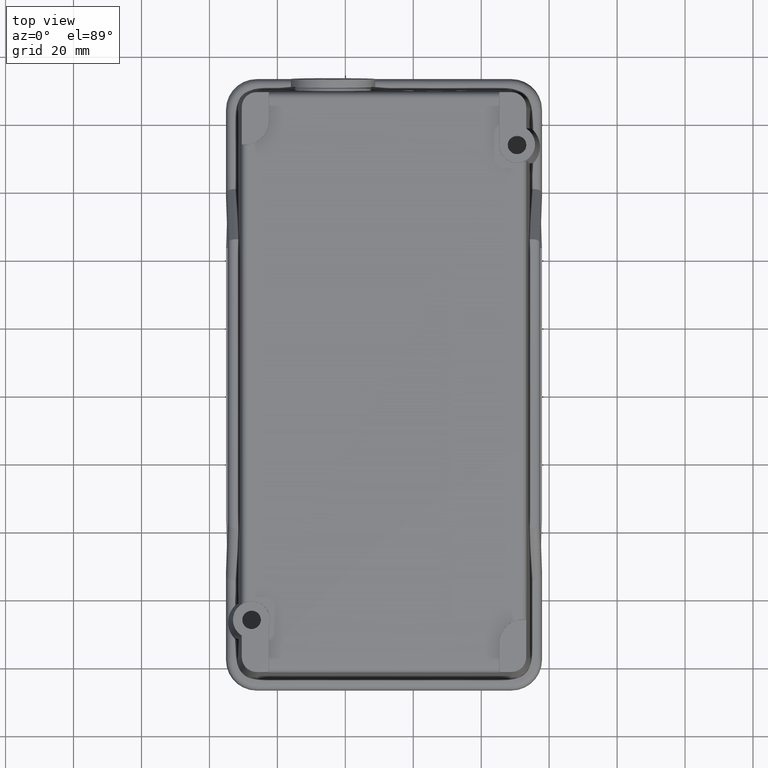
[diagram: clean part render]
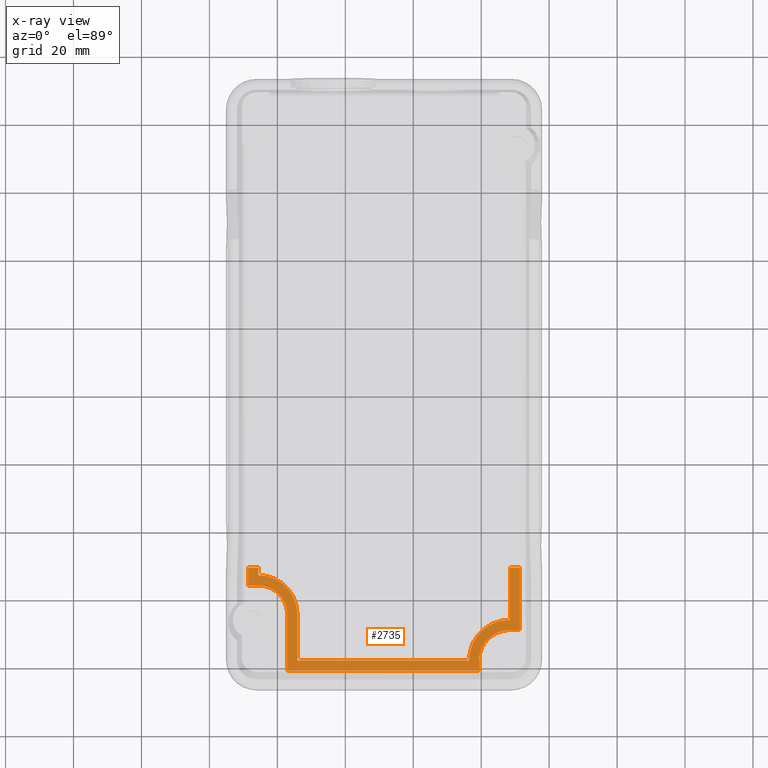
[diagram: x-ray — body ghosted, one internal face saturated and labeled with its STEP entity id]
A machine part, top view, then the same camera in x-ray: the body is ghosted and one INTERNAL B-rep face — a face not visible from any outside direction — is saturated and labeled: STEP entity #2735.
In plain terms, the highlighted planar face has unit normal (0, 0, -1).
Its self-contained STEP definition (entity closure, byte-faithful):
#2308=CARTESIAN_POINT('',(71.385091562882153,9.326639996555743,-3.000000000000060));
#2309=VERTEX_POINT('',#2308);
#2316=CARTESIAN_POINT('',(68.385091562882138,9.326639996555745,-3.000000000000062));
#2317=VERTEX_POINT('',#2316);
#2318=CARTESIAN_POINT('',(71.385091562882153,9.326639996555743,-3.000000000000060));
#2319=DIRECTION('',(-1.0,0.0,0.0));
#2320=VECTOR('',#2319,3.000000000000014);
#2321=LINE('',#2318,#2320);
#2322=EDGE_CURVE('',#2309,#2317,#2321,.T.);
#2371=CARTESIAN_POINT('',(71.385091562882153,-9.060219213902110,-3.000000000000056));
#2372=VERTEX_POINT('',#2371);
#2387=CARTESIAN_POINT('',(68.385081794713102,-9.060209445701265,-3.000000000000056));
#2388=VERTEX_POINT('',#2387);
#2395=CARTESIAN_POINT('',(68.385081794713102,-9.060209445701265,-3.000000000000056));
#2396=DIRECTION('',(0.999999999994699,-0.000003256056347,0.0));
#2397=VECTOR('',#2396,3.000009768184953);
#2398=LINE('',#2395,#2397);
#2399=EDGE_CURVE('',#2388,#2372,#2398,.T.);
#2411=CARTESIAN_POINT('',(59.377445663024666,-21.029586873288455,-3.000000000000056));
#2412=VERTEX_POINT('',#2411);
#2419=CARTESIAN_POINT('',(59.385081794689221,-18.037242516379955,-3.000000000000056));
#2420=VERTEX_POINT('',#2419);
#2421=CARTESIAN_POINT('',(59.385081794689221,-18.037242516379955,-3.000000000000056));
#2422=DIRECTION('',(-0.002551881030427,-0.999996743946302,0.0));
#2423=VECTOR('',#2422,2.992354100174133);
#2424=LINE('',#2421,#2423);
#2425=EDGE_CURVE('',#2420,#2412,#2424,.T.);
#2451=CARTESIAN_POINT('',(68.385091562882337,-6.060209445717158,-3.000000000000057));
#2452=VERTEX_POINT('',#2451);
#2459=CARTESIAN_POINT('',(56.385091562850462,-18.029586873288444,-3.000000000000057));
#2460=VERTEX_POINT('',#2459);
#2461=CARTESIAN_POINT('',(68.385052490206036,-18.060209445653655,-3.000000000000057));
#2462=DIRECTION('',(0.0,0.0,-1.0));
#2463=DIRECTION('',(-0.999996743946302,0.002551881030426,0.0));
#2464=AXIS2_PLACEMENT_3D('',#2461,#2462,#2463);
#2465=CIRCLE('',#2464,12.000000000000108);
#2466=EDGE_CURVE('',#2460,#2452,#2465,.T.);
#2500=CARTESIAN_POINT('',(68.385052490206036,-18.060209445653655,-3.000000000000056));
#2501=DIRECTION('',(0.0,0.0,-1.0));
#2502=DIRECTION('',(-0.999996743946302,0.002551881030426,0.0));
#2503=AXIS2_PLACEMENT_3D('',#2500,#2501,#2502);
#2504=CIRCLE('',#2503,9.000000000000098);
#2505=EDGE_CURVE('',#2420,#2388,#2504,.T.);
#2516=CARTESIAN_POINT('',(5.885091562884552,-18.029586873288597,-3.000000000000057));
#2517=VERTEX_POINT('',#2516);
#2518=CARTESIAN_POINT('',(5.885091562884552,-18.029586873288597,-3.000000000000057));
#2519=DIRECTION('',(1.0,0.0,0.0));
#2520=VECTOR('',#2519,50.499999999965908);
#2521=LINE('',#2518,#2520);
#2522=EDGE_CURVE('',#2517,#2460,#2521,.T.);
#2554=CARTESIAN_POINT('',(2.885091562884619,-21.029586873288444,-3.000000000000056));
#2555=VERTEX_POINT('',#2554);
#2562=CARTESIAN_POINT('',(2.885091562884619,-21.029586873288444,-3.000000000000056));
#2563=DIRECTION('',(1.0,0.0,0.0));
#2564=VECTOR('',#2563,56.492354100140048);
#2565=LINE('',#2562,#2564);
#2566=EDGE_CURVE('',#2555,#2412,#2565,.T.);
#2585=CARTESIAN_POINT('',(2.885091562884559,-4.400412990567373,-3.000000000000056));
#2586=VERTEX_POINT('',#2585);
#2593=CARTESIAN_POINT('',(2.885091562884559,-4.400412990567373,-3.000000000000056));
#2594=DIRECTION('',(0.0,-1.0,0.0));
#2595=VECTOR('',#2594,16.629173882721069);
#2596=LINE('',#2593,#2595);
#2597=EDGE_CURVE('',#2586,#2555,#2596,.T.);
#2610=CARTESIAN_POINT('',(-8.614908437115354,4.099587009432678,-3.000000000000056));
#2611=VERTEX_POINT('',#2610);
#2618=CARTESIAN_POINT('',(-5.614908437115539,4.099587009432649,-3.000000000000056));
#2619=VERTEX_POINT('',#2618);
#2620=CARTESIAN_POINT('',(-5.614908437115539,4.099587009432649,-3.000000000000056));
#2621=DIRECTION('',(-1.0,0.0,0.0));
#2622=VECTOR('',#2621,2.999999999999814);
#2623=LINE('',#2620,#2622);
#2624=EDGE_CURVE('',#2619,#2611,#2623,.T.);
#2657=CARTESIAN_POINT('',(-5.614908437115500,-4.400412990567410,-3.000000000000056));
#2658=DIRECTION('',(0.0,0.0,-1.0));
#2659=DIRECTION('',(0.0,1.0,0.0));
#2660=AXIS2_PLACEMENT_3D('',#2657,#2658,#2659);
#2661=CIRCLE('',#2660,8.500000000000059);
#2662=EDGE_CURVE('',#2619,#2586,#2661,.T.);
#2667=CARTESIAN_POINT('',(-5.614908437115346,8.083999309436427,-3.000000000000061));
#2668=DIRECTION('',(0.0,0.0,-1.0));
#2669=DIRECTION('',(-1.0,0.0,0.0));
#2670=AXIS2_PLACEMENT_3D('',#2667,#2668,#2669);
#2671=PLANE('',#2670);
#2672=CARTESIAN_POINT('',(-8.614908437115354,9.326639996555809,-3.000000000000060));
#2673=VERTEX_POINT('',#2672);
#2674=CARTESIAN_POINT('',(-8.614908437115354,9.326639996555809,-3.000000000000060));
#2675=DIRECTION('',(0.0,-1.0,0.0));
#2676=VECTOR('',#2675,5.227052987123130);
#2677=LINE('',#2674,#2676);
#2678=EDGE_CURVE('',#2673,#2611,#2677,.T.);
#2679=ORIENTED_EDGE('',*,*,#2678,.F.);
#2680=CARTESIAN_POINT('',(-5.614908437115346,9.326639996555803,-3.000000000000048));
#2681=VERTEX_POINT('',#2680);
#2682=CARTESIAN_POINT('',(-8.614908437115354,9.326639996555809,-3.000000000000060));
#2683=DIRECTION('',(1.0,0.0,0.0));
#2684=VECTOR('',#2683,3.000000000000007);
#2685=LINE('',#2682,#2684);
#2686=EDGE_CURVE('',#2673,#2681,#2685,.T.);
#2687=ORIENTED_EDGE('',*,*,#2686,.T.);
#2688=CARTESIAN_POINT('',(-5.614908437115346,7.099587009432481,-3.000000000000057));
#2689=VERTEX_POINT('',#2688);
#2690=CARTESIAN_POINT('',(-5.614908437115346,9.326639996555803,-3.000000000000048));
#2691=DIRECTION('',(0.0,-1.0,0.0));
#2692=VECTOR('',#2691,2.227052987123322);
#2693=LINE('',#2690,#2692);
#2694=EDGE_CURVE('',#2681,#2689,#2693,.T.);
#2695=ORIENTED_EDGE('',*,*,#2694,.T.);
#2696=CARTESIAN_POINT('',(5.885091562884566,-4.400412990567481,-3.000000000000057));
#2697=VERTEX_POINT('',#2696);
#2698=CARTESIAN_POINT('',(-5.614908437115500,-4.400412990567410,-3.000000000000057));
#2699=DIRECTION('',(0.0,0.0,-1.0));
#2700=DIRECTION('',(0.0,1.0,0.0));
#2701=AXIS2_PLACEMENT_3D('',#2698,#2699,#2700);
#2702=CIRCLE('',#2701,11.500000000000066);
#2703=EDGE_CURVE('',#2689,#2697,#2702,.T.);
#2704=ORIENTED_EDGE('',*,*,#2703,.T.);
#2705=CARTESIAN_POINT('',(5.885091562884566,-4.400412990567481,-3.000000000000057));
#2706=DIRECTION('',(0.0,-1.0,0.0));
#2707=VECTOR('',#2706,13.629173882721116);
#2708=LINE('',#2705,#2707);
#2709=EDGE_CURVE('',#2697,#2517,#2708,.T.);
#2710=ORIENTED_EDGE('',*,*,#2709,.T.);
#2711=ORIENTED_EDGE('',*,*,#2522,.T.);
#2712=ORIENTED_EDGE('',*,*,#2466,.T.);
#2713=CARTESIAN_POINT('',(68.385091562882337,-6.060209445717158,-3.000000000000057));
#2714=DIRECTION('',(0.0,1.0,0.0));
#2715=VECTOR('',#2714,15.386849442272903);
#2716=LINE('',#2713,#2715);
#2717=EDGE_CURVE('',#2452,#2317,#2716,.T.);
#2718=ORIENTED_EDGE('',*,*,#2717,.T.);
#2719=ORIENTED_EDGE('',*,*,#2322,.F.);
#2720=CARTESIAN_POINT('',(71.385091562882153,-9.060219213902110,-3.000000000000056));
#2721=DIRECTION('',(0.0,1.0,0.0));
#2722=VECTOR('',#2721,18.386859210457853);
#2723=LINE('',#2720,#2722);
#2724=EDGE_CURVE('',#2372,#2309,#2723,.T.);
#2725=ORIENTED_EDGE('',*,*,#2724,.F.);
#2726=ORIENTED_EDGE('',*,*,#2399,.F.);
#2727=ORIENTED_EDGE('',*,*,#2505,.F.);
#2728=ORIENTED_EDGE('',*,*,#2425,.T.);
#2729=ORIENTED_EDGE('',*,*,#2566,.F.);
#2730=ORIENTED_EDGE('',*,*,#2597,.F.);
#2731=ORIENTED_EDGE('',*,*,#2662,.F.);
#2732=ORIENTED_EDGE('',*,*,#2624,.T.);
#2733=EDGE_LOOP('',(#2679,#2687,#2695,#2704,#2710,#2711,#2712,#2718,#2719,#2725,#2726,#2727,#2728,#2729,#2730,#2731,#2732));
#2734=FACE_OUTER_BOUND('',#2733,.T.);
#2735=ADVANCED_FACE('',(#2734),#2671,.T.);